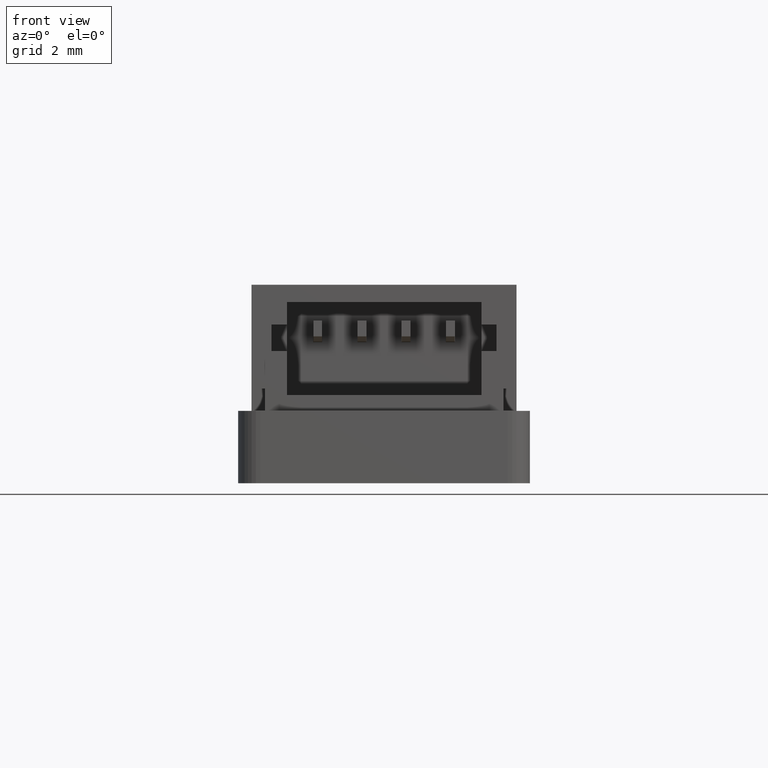
[diagram: clean part render]
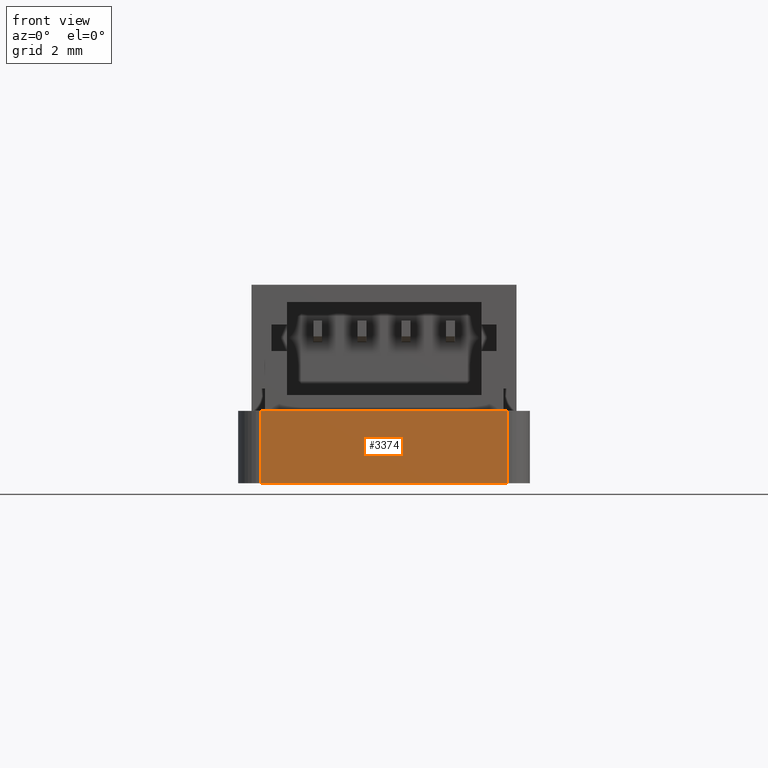
[diagram: same view with one face highlighted and labeled with its STEP entity id]
A machine part, front view. The second image highlights one B-rep face of the part: STEP entity #3374.
In plain terms, the highlighted planar face has unit normal (0, 1, 0).
Its self-contained STEP definition (entity closure, byte-faithful):
#3316 = EDGE_CURVE('',#3317,#3319,#3321,.T.);
#3317 = VERTEX_POINT('',#3318);
#3318 = CARTESIAN_POINT('',(4.8,-14.5,-0.82));
#3319 = VERTEX_POINT('',#3320);
#3320 = CARTESIAN_POINT('',(4.8,-14.5,0.82));
#3321 = LINE('',#3322,#3323);
#3322 = CARTESIAN_POINT('',(4.8,-14.5,-0.82));
#3323 = VECTOR('',#3324,1.);
#3324 = DIRECTION('',(0.E+000,0.E+000,1.));
#3349 = VERTEX_POINT('',#3350);
#3350 = CARTESIAN_POINT('',(-0.8,-14.5,0.82));
#3356 = EDGE_CURVE('',#3357,#3349,#3359,.T.);
#3357 = VERTEX_POINT('',#3358);
#3358 = CARTESIAN_POINT('',(-0.8,-14.5,-0.82));
#3359 = LINE('',#3360,#3361);
#3360 = CARTESIAN_POINT('',(-0.8,-14.5,-0.82));
#3361 = VECTOR('',#3362,1.);
#3362 = DIRECTION('',(0.E+000,0.E+000,1.));
#3374 = ADVANCED_FACE('',(#3375),#3391,.F.);
#3375 = FACE_BOUND('',#3376,.F.);
#3376 = EDGE_LOOP('',(#3377,#3378,#3384,#3385));
#3377 = ORIENTED_EDGE('',*,*,#3356,.T.);
#3378 = ORIENTED_EDGE('',*,*,#3379,.T.);
#3379 = EDGE_CURVE('',#3349,#3319,#3380,.T.);
#3380 = LINE('',#3381,#3382);
#3381 = CARTESIAN_POINT('',(-0.8,-14.5,0.82));
#3382 = VECTOR('',#3383,1.);
#3383 = DIRECTION('',(1.,0.E+000,0.E+000));
#3384 = ORIENTED_EDGE('',*,*,#3316,.F.);
#3385 = ORIENTED_EDGE('',*,*,#3386,.F.);
#3386 = EDGE_CURVE('',#3357,#3317,#3387,.T.);
#3387 = LINE('',#3388,#3389);
#3388 = CARTESIAN_POINT('',(-0.8,-14.5,-0.82));
#3389 = VECTOR('',#3390,1.);
#3390 = DIRECTION('',(1.,0.E+000,0.E+000));
#3391 = PLANE('',#3392);
#3392 = AXIS2_PLACEMENT_3D('',#3393,#3394,#3395);
#3393 = CARTESIAN_POINT('',(-0.8,-14.5,-0.82));
#3394 = DIRECTION('',(0.E+000,1.,0.E+000));
#3395 = DIRECTION('',(1.,0.E+000,0.E+000));